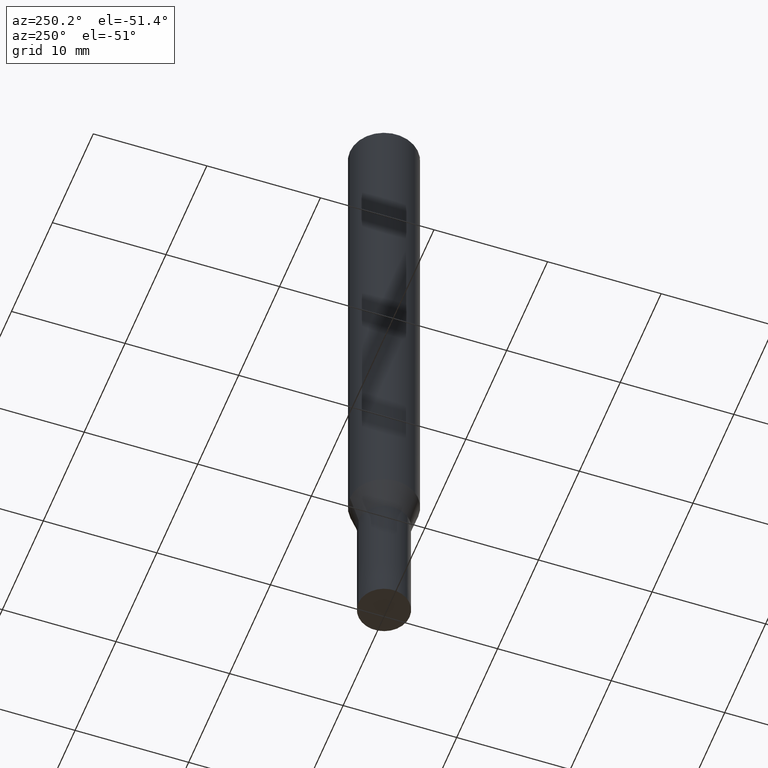
[diagram: clean part render]
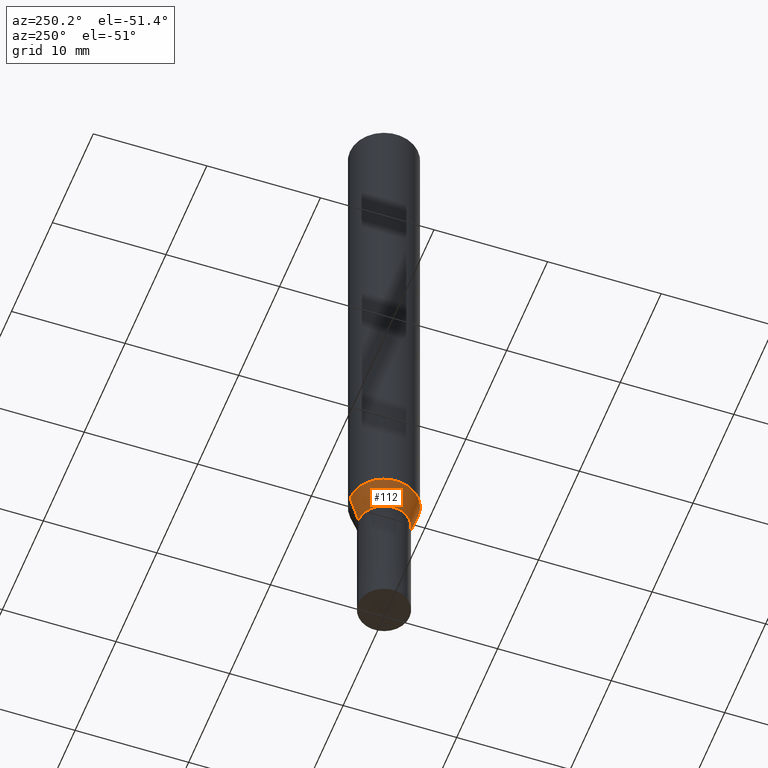
[diagram: same view with one face highlighted and labeled with its STEP entity id]
A machine part, auxiliary view. The second image highlights one B-rep face of the part: STEP entity #112.
In plain terms, the highlighted conical surface has half-angle 15.997 deg.
Its self-contained STEP definition (entity closure, byte-faithful):
#106=EDGE_CURVE('',#176,#154,#230,.T.);
#112=ADVANCED_FACE('',(#237),#238,.T.);
#114=EDGE_CURVE('',#130,#154,#240,.T.);
#130=VERTEX_POINT('',#258);
#134=EDGE_CURVE('',#176,#180,#263,.T.);
#144=EDGE_CURVE('',#180,#130,#273,.T.);
#154=VERTEX_POINT('',#284);
#176=VERTEX_POINT('',#311);
#180=VERTEX_POINT('',#315);
#230=CIRCLE('',#365,2.24995);
#237=FACE_OUTER_BOUND('',#372,.T.);
#238=CONICAL_SURFACE('',#373,2.62495,0.279208199033747);
#240=LINE('',#376,#377);
#258=CARTESIAN_POINT('',(0.0,2.99995,-46.384));
#263=LINE('',#407,#408);
#273=CIRCLE('',#423,2.99995);
#284=CARTESIAN_POINT('',(0.0,2.24995,-49.0));
#311=CARTESIAN_POINT('',(2.75530306578266E-016,-2.24995,-49.0));
#315=CARTESIAN_POINT('',(3.67375783114944E-016,-2.99995,-46.384));
#365=AXIS2_PLACEMENT_3D('',#516,#517,#518);
#372=EDGE_LOOP('',(#526,#527,#528,#529));
#373=AXIS2_PLACEMENT_3D('',#530,#531,#532);
#376=CARTESIAN_POINT('',(-3.21453044846605E-016,2.62495,-47.692));
#377=VECTOR('',#533,1.0);
#407=CARTESIAN_POINT('',(3.21453044846605E-016,-2.62495,-47.692));
#408=VECTOR('',#564,1.0);
#423=AXIS2_PLACEMENT_3D('',#572,#573,#574);
#516=CARTESIAN_POINT('',(0.0,0.0,-49.0));
#517=DIRECTION('',(0.0,0.0,-1.0));
#518=DIRECTION('',(0.0,1.0,0.0));
#526=ORIENTED_EDGE('',*,*,#114,.T.);
#527=ORIENTED_EDGE('',*,*,#106,.F.);
#528=ORIENTED_EDGE('',*,*,#134,.T.);
#529=ORIENTED_EDGE('',*,*,#144,.T.);
#530=CARTESIAN_POINT('',(0.0,0.0,-47.692));
#531=DIRECTION('',(-0.0,-0.0,1.0));
#532=DIRECTION('',(0.0,1.0,0.0));
#533=DIRECTION('',(3.37494895041124E-017,-0.275594597388538,-0.961273955691222));
#564=DIRECTION('',(3.37494895041124E-017,-0.275594597388538,0.961273955691222));
#572=CARTESIAN_POINT('',(0.0,0.0,-46.384));
#573=DIRECTION('',(0.0,0.0,-1.0));
#574=DIRECTION('',(0.0,1.0,0.0));